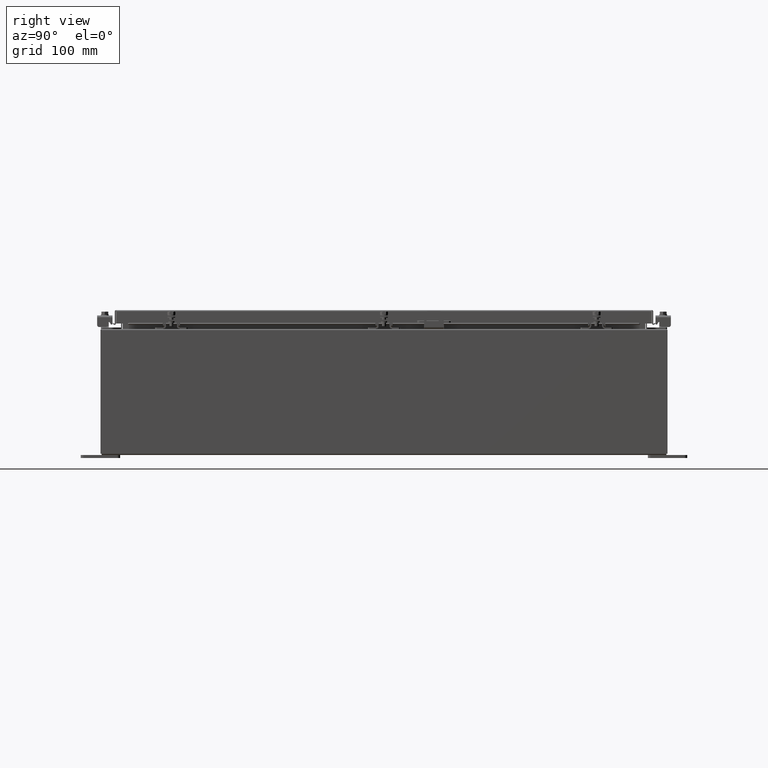
[diagram: clean part render]
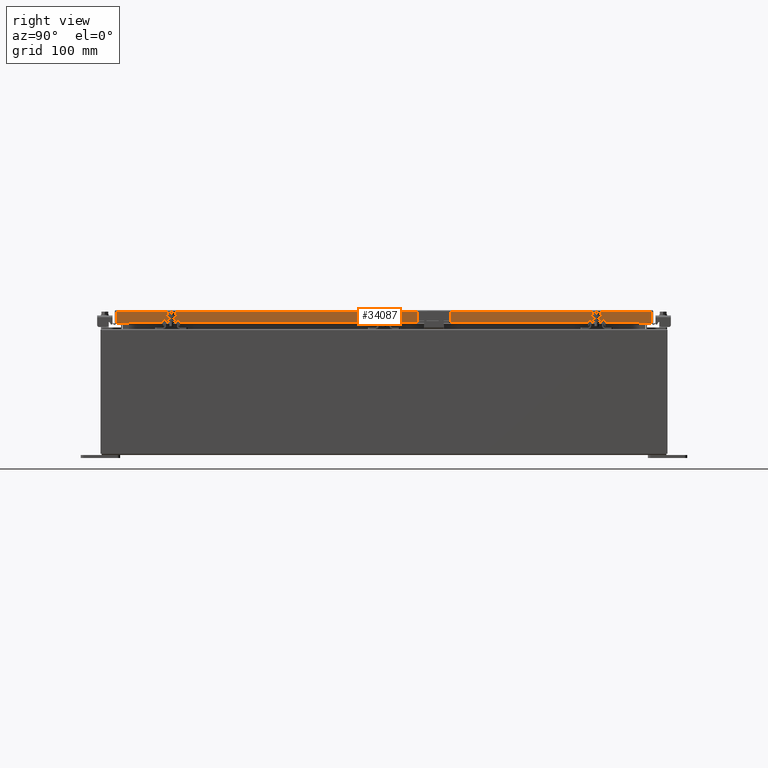
[diagram: same view with one face highlighted and labeled with its STEP entity id]
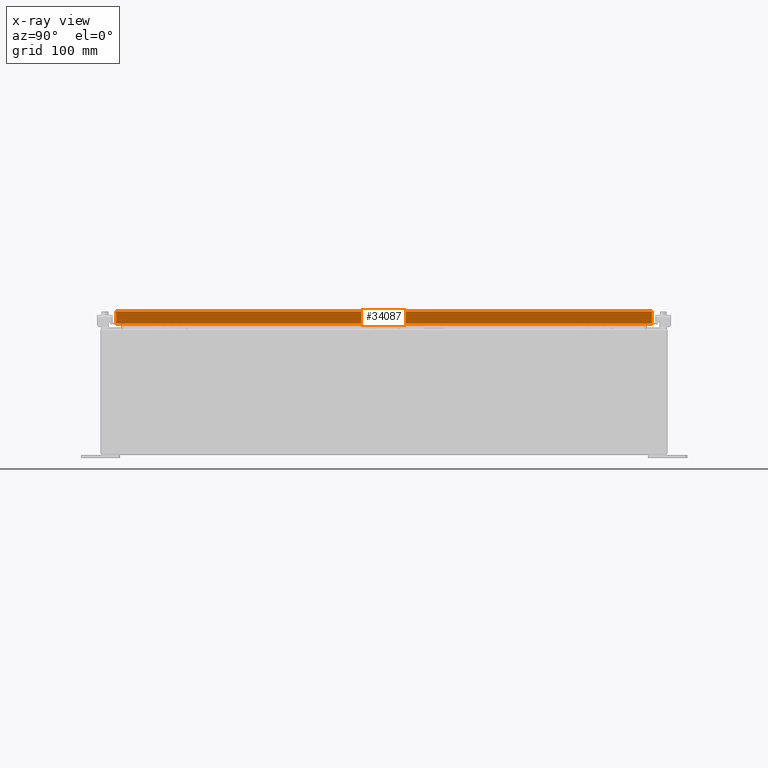
[diagram: x-ray of the same camera — body ghosted, the highlighted face saturated]
A machine part, right view. The second image highlights one B-rep face of the part: STEP entity #34087.
The next image is the same camera in x-ray: the body ghosted, the highlighted face saturated — about 0% of this face is hidden behind the body in this view.
In plain terms, the highlighted planar face has unit normal (1, 0, 0).
Its self-contained STEP definition (entity closure, byte-faithful):
#109 = CARTESIAN_POINT ( 'NONE',  ( 11.07799999999999800, -17.09399999999999800, -0.8499999999999996400 ) ) ;
#388 = ORIENTED_EDGE ( 'NONE', *, *, #35328, .F. ) ;
#927 = CARTESIAN_POINT ( 'NONE',  ( 11.07799999999999600, 17.00515786437627600, 1.502347594351464400E-013 ) ) ;
#1218 = VECTOR ( 'NONE', #19458, 39.37007874015748100 ) ;
#2324 = VECTOR ( 'NONE', #17019, 39.37007874015748100 ) ;
#2821 = CARTESIAN_POINT ( 'NONE',  ( 11.07799999999999600, 0.0000000000000000000, 3.148837674004377800E-014 ) ) ;
#2956 = EDGE_CURVE ( 'NONE', #39555, #32592, #30985, .T. ) ;
#4138 = EDGE_CURVE ( 'NONE', #22633, #5581, #33876, .T. ) ;
#5122 = CARTESIAN_POINT ( 'NONE',  ( 11.07799999999998900, 16.25515786437628000, -0.8500000000000016400 ) ) ;
#5143 = CARTESIAN_POINT ( 'NONE',  ( 11.07799999999998900, -16.25515786437626200, -0.8500000000000016400 ) ) ;
#5581 = VERTEX_POINT ( 'NONE', #15399 ) ;
#6215 = DIRECTION ( 'NONE',  ( 2.818880942772360100E-015, 0.0000000000000000000, -1.000000000000000000 ) ) ;
#6563 = VERTEX_POINT ( 'NONE', #11281 ) ;
#7422 = ORIENTED_EDGE ( 'NONE', *, *, #2956, .F. ) ;
#7547 = VERTEX_POINT ( 'NONE', #40742 ) ;
#7593 = DIRECTION ( 'NONE',  ( -2.818880942772360500E-015, -6.982962677686269100E-015, 1.000000000000000000 ) ) ;
#11053 = LINE ( 'NONE', #25410, #2324 ) ;
#11109 = DIRECTION ( 'NONE',  ( -2.818880942772360500E-015, -6.982962677686269100E-015, 1.000000000000000000 ) ) ;
#11281 = CARTESIAN_POINT ( 'NONE',  ( 11.07799999999999600, 17.00515786437627600, -0.08770000000000007000 ) ) ;
#12173 = EDGE_CURVE ( 'NONE', #7547, #39555, #11053, .T. ) ;
#12358 = ORIENTED_EDGE ( 'NONE', *, *, #12173, .F. ) ;
#12626 = ORIENTED_EDGE ( 'NONE', *, *, #31065, .T. ) ;
#15399 = CARTESIAN_POINT ( 'NONE',  ( 11.07799999999999600, -17.00515786437626500, -0.08770000000000007000 ) ) ;
#16232 = CARTESIAN_POINT ( 'NONE',  ( 11.07799999999999600, 0.0000000000000000000, -0.08770000000000007000 ) ) ;
#16799 = VECTOR ( 'NONE', #26223, 39.37007874015748100 ) ;
#17019 = DIRECTION ( 'NONE',  ( 0.0000000000000000000, -1.000000000000000000, 0.0000000000000000000 ) ) ;
#19458 = DIRECTION ( 'NONE',  ( 0.0000000000000000000, -1.000000000000000000, 0.0000000000000000000 ) ) ;
#19631 = EDGE_CURVE ( 'NONE', #6563, #5581, #36796, .T. ) ;
#19666 = ORIENTED_EDGE ( 'NONE', *, *, #4138, .F. ) ;
#22396 = VECTOR ( 'NONE', #30766, 39.37007874015748100 ) ;
#22633 = VERTEX_POINT ( 'NONE', #30124 ) ;
#24441 = AXIS2_PLACEMENT_3D ( 'NONE', #2821, #25628, #6215 ) ;
#25410 = CARTESIAN_POINT ( 'NONE',  ( 11.07799999999999800, -17.09399999999999800, -0.8499999999999996400 ) ) ;
#25628 = DIRECTION ( 'NONE',  ( 1.000000000000000000, 0.0000000000000000000, 2.818880942772360100E-015 ) ) ;
#26223 = DIRECTION ( 'NONE',  ( 0.0000000000000000000, -1.000000000000000000, 0.0000000000000000000 ) ) ;
#26268 = VECTOR ( 'NONE', #7593, 39.37007874015748100 ) ;
#30124 = CARTESIAN_POINT ( 'NONE',  ( 11.07799999999999800, -17.00515786437626200, -0.8499999999999996400 ) ) ;
#30766 = DIRECTION ( 'NONE',  ( 0.0000000000000000000, -1.000000000000000000, 0.0000000000000000000 ) ) ;
#30985 = LINE ( 'NONE', #40868, #22396 ) ;
#31065 = EDGE_CURVE ( 'NONE', #7547, #6563, #35820, .T. ) ;
#32319 = ORIENTED_EDGE ( 'NONE', *, *, #19631, .T. ) ;
#32359 = EDGE_LOOP ( 'NONE', ( #19666, #388, #7422, #12358, #12626, #32319 ) ) ;
#32592 = VERTEX_POINT ( 'NONE', #5143 ) ;
#32975 = LINE ( 'NONE', #109, #16799 ) ;
#33876 = LINE ( 'NONE', #34423, #34896 ) ;
#34087 = ADVANCED_FACE ( 'NONE', ( #41220 ), #41735, .T. ) ;
#34423 = CARTESIAN_POINT ( 'NONE',  ( 11.07799999999999600, -17.00515786437626500, -0.07469999999999978000 ) ) ;
#34896 = VECTOR ( 'NONE', #11109, 39.37007874015748100 ) ;
#35328 = EDGE_CURVE ( 'NONE', #32592, #22633, #32975, .T. ) ;
#35820 = LINE ( 'NONE', #927, #26268 ) ;
#36796 = LINE ( 'NONE', #16232, #1218 ) ;
#39555 = VERTEX_POINT ( 'NONE', #5122 ) ;
#40742 = CARTESIAN_POINT ( 'NONE',  ( 11.07799999999999800, 17.00515786437628000, -0.8499999999999996400 ) ) ;
#40868 = CARTESIAN_POINT ( 'NONE',  ( 11.07799999999998900, 16.25515786437628300, -0.8500000000000016400 ) ) ;
#41220 = FACE_OUTER_BOUND ( 'NONE', #32359, .T. ) ;
#41735 = PLANE ( 'NONE',  #24441 ) ;